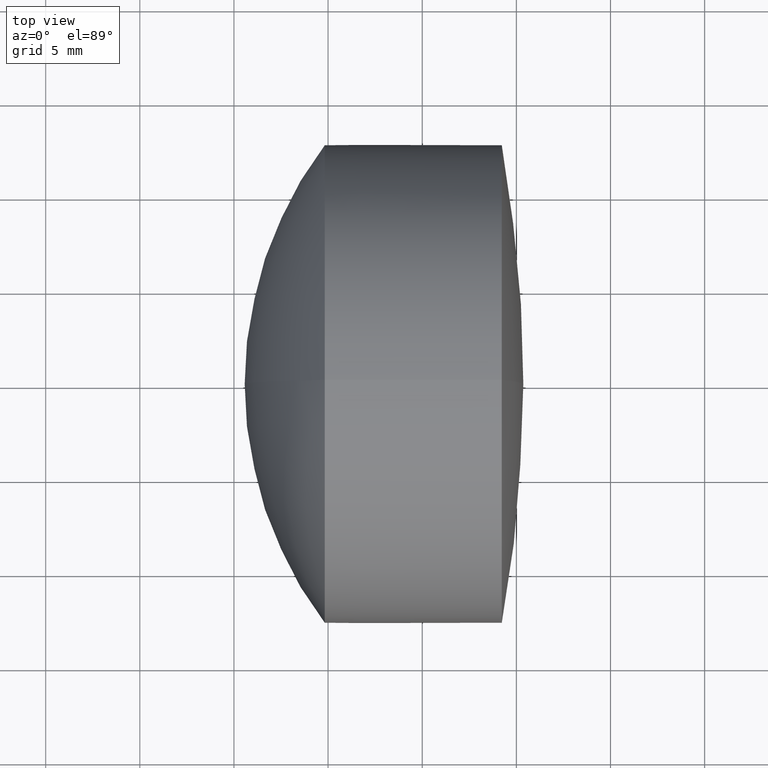
[diagram: clean part render]
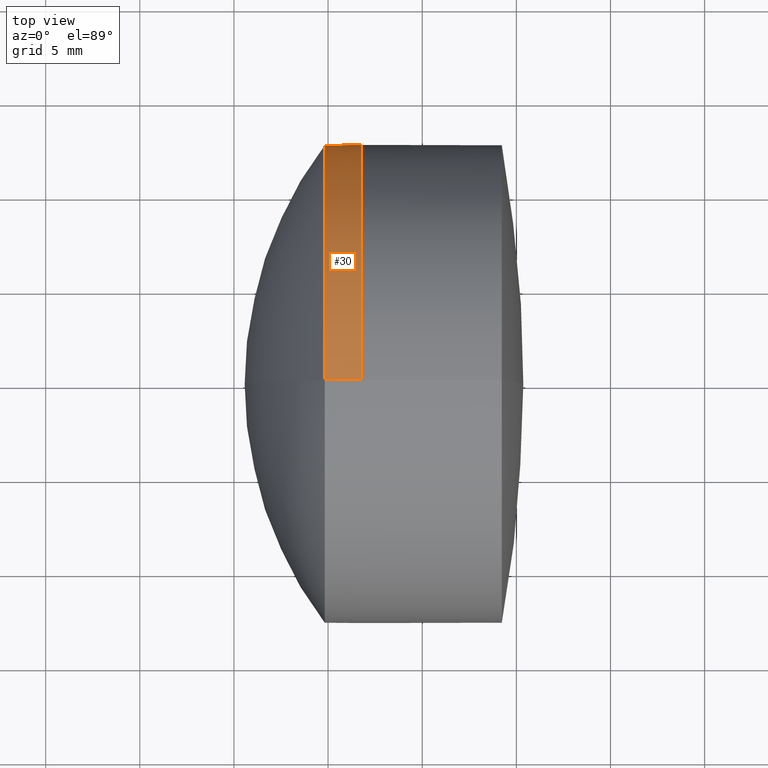
[diagram: same view with one face highlighted and labeled with its STEP entity id]
A machine part, top view. The second image highlights one B-rep face of the part: STEP entity #30.
In plain terms, the highlighted cylindrical surface (partial cylindrical patch) has radius 12.7 mm, axis along (-1, -0, -0).
Its self-contained STEP definition (entity closure, byte-faithful):
#1 = CARTESIAN_POINT ( 'NONE',  ( 16.75446555327505400, 1.555301434917138400E-015, -12.69999999999999900 ) ) ;
#9 = CARTESIAN_POINT ( 'NONE',  ( 16.75446555327505400, 0.0000000000000000000, 0.0000000000000000000 ) ) ;
#11 = ORIENTED_EDGE ( 'NONE', *, *, #61, .T. ) ;
#14 = CARTESIAN_POINT ( 'NONE',  ( 16.75446555327505400, 0.0000000000000000000, 12.69999999999999900 ) ) ;
#15 = ORIENTED_EDGE ( 'NONE', *, *, #346, .T. ) ;
#19 = LINE ( 'NONE', #123, #310 ) ;
#22 = EDGE_LOOP ( 'NONE', ( #15, #11, #153, #252 ) ) ;
#30 = ADVANCED_FACE ( 'NONE', ( #172 ), #181, .T. ) ;
#35 = DIRECTION ( 'NONE',  ( -1.000000000000000000, -0.0000000000000000000, -0.0000000000000000000 ) ) ;
#51 = DIRECTION ( 'NONE',  ( -1.000000000000000000, -0.0000000000000000000, -0.0000000000000000000 ) ) ;
#61 = EDGE_CURVE ( 'NONE', #178, #293, #342, .T. ) ;
#76 = VECTOR ( 'NONE', #51, 1000.000000000000000 ) ;
#80 = CARTESIAN_POINT ( 'NONE',  ( 14.82283676720187200, 1.555301434917138400E-015, -12.69999999999999900 ) ) ;
#96 = AXIS2_PLACEMENT_3D ( 'NONE', #229, #35, #200 ) ;
#100 = VERTEX_POINT ( 'NONE', #179 ) ;
#102 = CIRCLE ( 'NONE', #96, 12.69999999999999900 ) ;
#104 = VERTEX_POINT ( 'NONE', #14 ) ;
#123 = CARTESIAN_POINT ( 'NONE',  ( -0.8160621761658039000, 0.0000000000000000000, 12.69999999999999900 ) ) ;
#126 = CARTESIAN_POINT ( 'NONE',  ( -0.8160621761658039000, 1.555301434917138400E-015, -12.69999999999999900 ) ) ;
#153 = ORIENTED_EDGE ( 'NONE', *, *, #240, .F. ) ;
#172 = FACE_OUTER_BOUND ( 'NONE', #22, .T. ) ;
#174 = DIRECTION ( 'NONE',  ( -1.000000000000000000, -0.0000000000000000000, -0.0000000000000000000 ) ) ;
#178 = VERTEX_POINT ( 'NONE', #1 ) ;
#179 = CARTESIAN_POINT ( 'NONE',  ( 14.82283676720187200, 0.0000000000000000000, 12.69999999999999900 ) ) ;
#180 = EDGE_CURVE ( 'NONE', #104, #100, #19, .T. ) ;
#181 = CYLINDRICAL_SURFACE ( 'NONE', #333, 12.69999999999999900 ) ;
#183 = DIRECTION ( 'NONE',  ( -1.000000000000000000, -0.0000000000000000000, -0.0000000000000000000 ) ) ;
#187 = CARTESIAN_POINT ( 'NONE',  ( -0.8160621761658039000, 0.0000000000000000000, 0.0000000000000000000 ) ) ;
#200 = DIRECTION ( 'NONE',  ( 0.0000000000000000000, 0.0000000000000000000, 1.000000000000000000 ) ) ;
#229 = CARTESIAN_POINT ( 'NONE',  ( 14.82283676720187400, 0.0000000000000000000, 0.0000000000000000000 ) ) ;
#240 = EDGE_CURVE ( 'NONE', #100, #293, #102, .T. ) ;
#252 = ORIENTED_EDGE ( 'NONE', *, *, #180, .F. ) ;
#272 = CIRCLE ( 'NONE', #290, 12.69999999999999900 ) ;
#290 = AXIS2_PLACEMENT_3D ( 'NONE', #9, #174, #336 ) ;
#292 = DIRECTION ( 'NONE',  ( -1.000000000000000000, -0.0000000000000000000, -0.0000000000000000000 ) ) ;
#293 = VERTEX_POINT ( 'NONE', #80 ) ;
#310 = VECTOR ( 'NONE', #292, 1000.000000000000000 ) ;
#324 = DIRECTION ( 'NONE',  ( 0.0000000000000000000, 0.0000000000000000000, 1.000000000000000000 ) ) ;
#333 = AXIS2_PLACEMENT_3D ( 'NONE', #187, #183, #324 ) ;
#336 = DIRECTION ( 'NONE',  ( 0.0000000000000000000, 0.0000000000000000000, 1.000000000000000000 ) ) ;
#342 = LINE ( 'NONE', #126, #76 ) ;
#346 = EDGE_CURVE ( 'NONE', #104, #178, #272, .T. ) ;